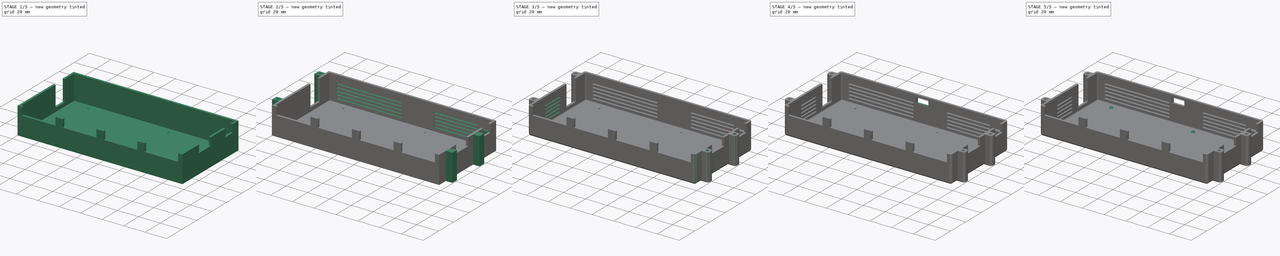
[diagram: build sequence overview — one tinted view per stage of 5, left to right]
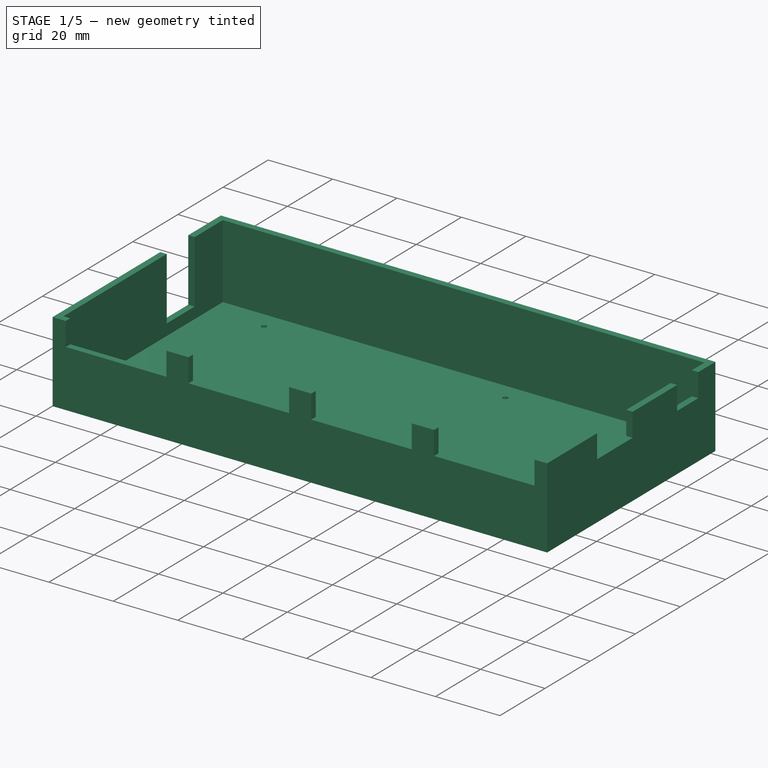
[diagram: stage 1 of 5 — iso view after this stage's code; geometry added in this stage tinted green]
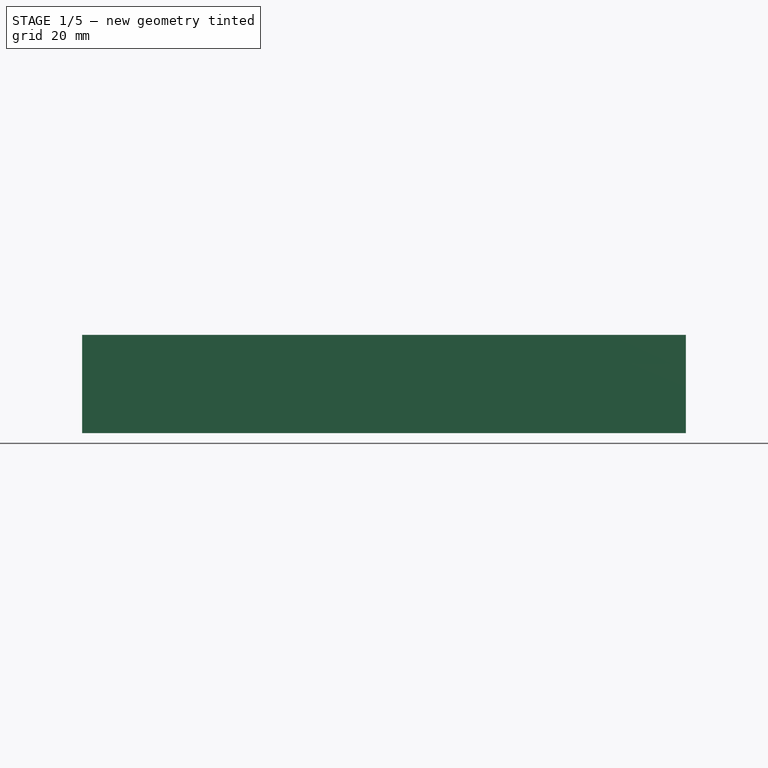
[diagram: stage 1 of 5 — front view after this stage's code; geometry added in this stage tinted green]
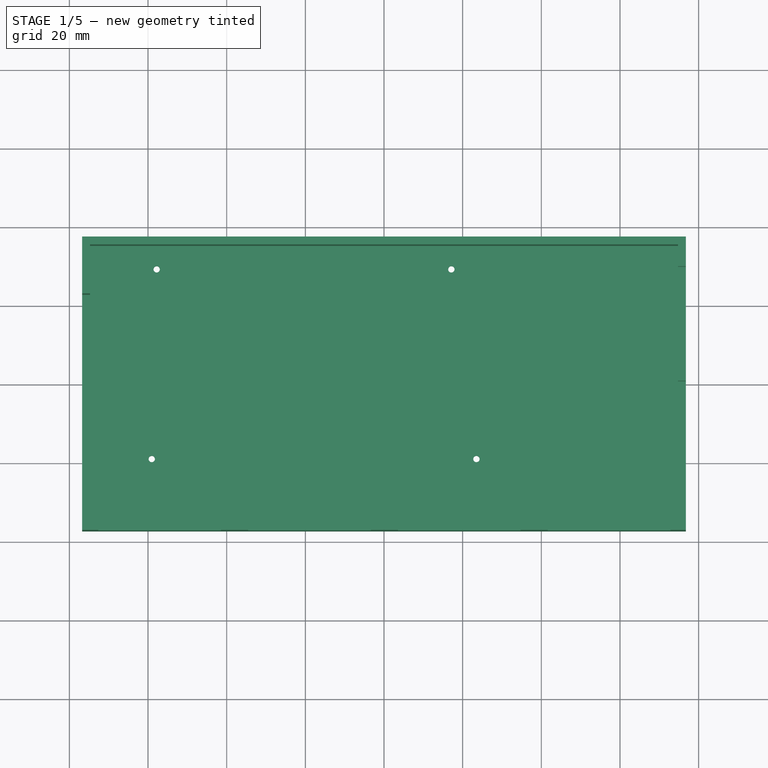
[diagram: stage 1 of 5 — top view after this stage's code; geometry added in this stage tinted green]
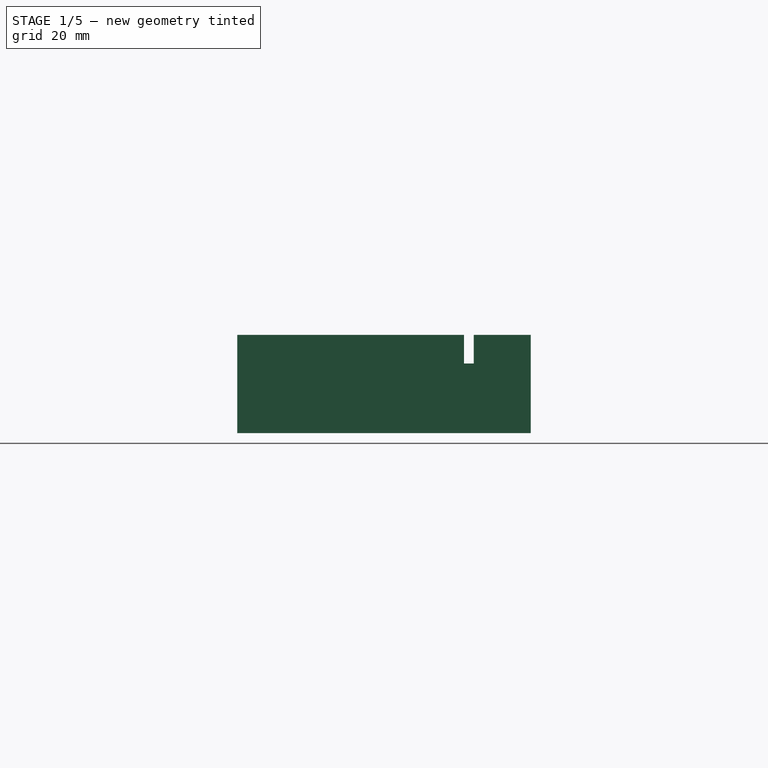
[diagram: stage 1 of 5 — right view after this stage's code; geometry added in this stage tinted green]
FCSTD DOCUMENT  (FreeCAD 0.19R24267 +148 (Git))
Label: case_bottom
License: All rights reserved
LicenseURL: http://en.wikipedia.org/wiki/All_rights_reserved
objects: Sketcher::SketchObject×16, PartDesign::Fillet×8, PartDesign::Pocket×7, PartDesign::Pad×4, PartDesign::Hole×4, PartDesign::AdditiveCone×4, PartDesign::Chamfer×1, PartDesign::Body×1
note: 73 computed .brp shape members not serialized (recipe doc carries the construction recipe); baked Part::Feature solids carry a one-line shape summary decoded from their .brp

FEATURE [Sketcher::SketchObject] Sketch
  FullyConstrained = true
  MapMode = 5
  Support = -> [XY_Plane]
  sketch-geometry (4):
    g0: LineSegment StartX=-76.75 StartY=37.3 StartZ=0 EndX=76.75 EndY=37.3 EndZ=0
    g1: LineSegment StartX=76.75 StartY=37.3 StartZ=0 EndX=76.75 EndY=-37.3 EndZ=0
    g2: LineSegment StartX=76.75 StartY=-37.3 StartZ=0 EndX=-76.75 EndY=-37.3 EndZ=0
    g3: LineSegment StartX=-76.75 StartY=-37.3 StartZ=0 EndX=-76.75 EndY=37.3 EndZ=0
  constraints (11):
    c: Coincident(g0,g1)
    c: Coincident(g1,g2)
    c: Coincident(g2,g3)
    c: Coincident(g3,g0)
    c: Horizontal(g0)
    c: Horizontal(g2)
    c: Vertical(g1)
    c: Vertical(g3)
    c: DistanceX(g2,g2) = 153.5
    c: DistanceY(g1,g1) = 74.6
    c: Symmetric(g1,g0,g-1)
FEATURE [PartDesign::Pad] Pad
  Direction = (1,1,1)
  Length = 25
  Length2 = 100
  Profile = -> Sketch
  Type = 0
FEATURE [Sketcher::SketchObject] Sketch001
  ExternalGeometry = -> [Pad]
  FullyConstrained = true
  MapMode = 5
  Placement = pos=(0,0,25) rot=(0,0,1;0rad)
  Support = -> [Pad]
  sketch-geometry (4):
    g0: LineSegment StartX=-74.75 StartY=35.3 StartZ=0 EndX=74.75 EndY=35.3 EndZ=0
    g1: LineSegment StartX=74.75 StartY=35.3 StartZ=0 EndX=74.75 EndY=-35.3 EndZ=0
    g2: LineSegment StartX=74.75 StartY=-35.3 StartZ=0 EndX=-74.75 EndY=-35.3 EndZ=0
    g3: LineSegment StartX=-74.75 StartY=-35.3 StartZ=0 EndX=-74.75 EndY=35.3 EndZ=0
  constraints (12):
    c: Coincident(g0,g1)
    c: Coincident(g1,g2)
    c: Coincident(g2,g3)
    c: Coincident(g3,g0)
    c: Horizontal(g0)
    c: Horizontal(g2)
    c: Vertical(g1)
    c: Vertical(g3)
    c: DistanceX(g0,g0) = 149.5
    c: DistanceY(g1,g1) = 70.6
    c: DistanceX(g-3,g0) = 2
    c: DistanceY(g0,g-3) = 2
FEATURE [PartDesign::Pocket] Pocket
  BaseFeature = -> Pad
  Length = 23
  Length2 = 100
  Profile = -> Sketch001
  Type = 0
FEATURE [Sketcher::SketchObject] Sketch002
  ExternalGeometry = -> [Pocket]
  FullyConstrained = true
  MapMode = 5
  Placement = pos=(0,-37.3,0) rot=(1,0,0;1.5708rad)
  Support = -> [Pocket]
  sketch-geometry (16):
    g0: LineSegment StartX=-72.65 StartY=25 StartZ=0 EndX=-41.45 EndY=25 EndZ=0
    g1: LineSegment StartX=-41.45 StartY=25 StartZ=0 EndX=-41.45 EndY=17.7 EndZ=0
    g2: LineSegment StartX=-41.45 StartY=17.7 StartZ=0 EndX=-72.65 EndY=17.7 EndZ=0
    g3: LineSegment StartX=-72.65 StartY=17.7 StartZ=0 EndX=-72.65 EndY=25 EndZ=0
    g4: LineSegment StartX=-34.55 StartY=25 StartZ=0 EndX=-3.35 EndY=25 EndZ=0
    g5: LineSegment StartX=-3.35 StartY=25 StartZ=0 EndX=-3.35 EndY=17.7 EndZ=0
    g6: LineSegment StartX=-3.35 StartY=17.7 StartZ=0 EndX=-34.55 EndY=17.7 EndZ=0
    g7: LineSegment StartX=-34.55 StartY=17.7 StartZ=0 EndX=-34.55 EndY=25 EndZ=0
    g8: LineSegment StartX=3.55 StartY=25 StartZ=0 EndX=34.75 EndY=25 EndZ=0
    g9: LineSegment StartX=34.75 StartY=25 StartZ=0 EndX=34.75 EndY=17.7 EndZ=0
    g10: LineSegment StartX=34.75 StartY=17.7 StartZ=0 EndX=3.55 EndY=17.7 EndZ=0
    g11: LineSegment StartX=3.55 StartY=17.7 StartZ=0 EndX=3.55 EndY=25 EndZ=0
    g12: LineSegment StartX=41.65 StartY=25 StartZ=0 EndX=72.85 EndY=25 EndZ=0
    g13: LineSegment StartX=72.85 StartY=25 StartZ=0 EndX=72.85 EndY=17.7 EndZ=0
    g14: LineSegment StartX=72.85 StartY=17.7 StartZ=0 EndX=41.65 EndY=17.7 EndZ=0
    g15: LineSegment StartX=41.65 StartY=17.7 StartZ=0 EndX=41.65 EndY=25 EndZ=0
  constraints (48):
    c: Coincident(g0,g1)
    c: Coincident(g1,g2)
    c: Coincident(g2,g3)
    c: Coincident(g3,g0)
    c: Horizontal(g0)
    c: Horizontal(g2)
    c: Vertical(g1)
    c: Vertical(g3)
    c: PointOnObject(g0,g-4)
    c: DistanceX(g0,g0) = 31.2
    c: DistanceY(g-5,g2) = 17.7
    c: Coincident(g4,g5)
    c: Coincident(g5,g6)
    c: Coincident(g6,g7)
    c: Coincident(g7,g4)
    c: Horizontal(g4)
    c: Horizontal(g6)
    c: Vertical(g5)
    c: Vertical(g7)
    c: Coincident(g8,g9)
    c: Coincident(g9,g10)
    c: Coincident(g10,g11)
    c: Coincident(g11,g8)
    c: Horizontal(g8)
    c: Horizontal(g10)
    c: Vertical(g9)
    c: Vertical(g11)
    c: Coincident(g12,g13)
    c: Coincident(g13,g14)
    c: Coincident(g14,g15)
    c: Coincident(g15,g12)
    c: Horizontal(g12)
    c: Horizontal(g14)
    c: Vertical(g13)
    c: Vertical(g15)
    c: PointOnObject(g4,g-4)
    c: PointOnObject(g8,g-4)
    c: PointOnObject(g12,g-4)
    c: Equal(g7,g1)
    c: Equal(g6,g2)
    c: DistanceX(g0,g4) = 6.9
    c: DistanceX(g4,g8) = 6.9
    c: DistanceX(g8,g12) = 6.9
    c: Equal(g11,g1)
    c: Equal(g10,g2)
    c: Equal(g15,g1)
    c: Equal(g14,g2)
    c: DistanceX(g-4,g0) = 4.1
FEATURE [PartDesign::Pocket] Pocket001
  BaseFeature = -> Pocket
  Length = 0
  Length2 = 100
  Profile = -> Sketch002
  Type = 3
  UpToFace = -> Pocket [Face9]
FEATURE [Sketcher::SketchObject] Sketch003
  ExternalGeometry = -> [Pocket001]
  FullyConstrained = true
  MapMode = 5
  Placement = pos=(76.75,0,0) rot=(0.57735,0.57735,0.57735;2.0944rad)
  Support = -> [Pocket001]
  sketch-geometry (8):
    g0: LineSegment StartX=-15.16 StartY=25 StartZ=0 EndX=0.61 EndY=25 EndZ=0
    g1: LineSegment StartX=0.61 StartY=25 StartZ=0 EndX=0.61 EndY=17.7 EndZ=0
    g2: LineSegment StartX=0.61 StartY=17.7 StartZ=0 EndX=-15.16 EndY=17.7 EndZ=0
    g3: LineSegment StartX=-15.16 StartY=17.7 StartZ=0 EndX=-15.16 EndY=25 EndZ=0
    g4: LineSegment StartX=20.33 StartY=25 StartZ=0 EndX=29.73 EndY=25 EndZ=0
    g5: LineSegment StartX=29.73 StartY=25 StartZ=0 EndX=29.73 EndY=17.7 EndZ=0
    g6: LineSegment StartX=29.73 StartY=17.7 StartZ=0 EndX=20.33 EndY=17.7 EndZ=0
    g7: LineSegment StartX=20.33 StartY=17.7 StartZ=0 EndX=20.33 EndY=25 EndZ=0
  constraints (24):
    c: Coincident(g0,g1)
    c: Coincident(g1,g2)
    c: Coincident(g2,g3)
    c: Coincident(g3,g0)
    c: Horizontal(g0)
    c: Horizontal(g2)
    c: Vertical(g1)
    c: Vertical(g3)
    c: DistanceX(g-5,g0) = 22.14
    c: DistanceX(g0,g0) = 15.77
    c: DistanceY(g-1,g1) = 17.7
    c: Coincident(g4,g5)
    c: Coincident(g5,g6)
    c: Coincident(g6,g7)
    c: Coincident(g7,g4)
    c: Horizontal(g4)
    c: Horizontal(g6)
    c: Vertical(g5)
    c: Vertical(g7)
    c: DistanceY(g-1,g6) = 17.7
    c: DistanceX(g0,g4) = 19.72
    c: DistanceX(g4,g4) = 9.4
    c: PointOnObject(g0,g-5)
    c: PointOnObject(g4,g-5)
FEATURE [PartDesign::Pocket] Pocket002
  BaseFeature = -> Pocket001
  Length = 0
  Length2 = 100
  Profile = -> Sketch003
  Type = 3
  UpToFace = -> Pocket001 [Face11]
FEATURE [Sketcher::SketchObject] Sketch004
  ExternalGeometry = -> [Pocket002]
  FullyConstrained = true
  MapMode = 5
  Placement = pos=(-76.75,0,0) rot=(0.57735,-0.57735,-0.57735;2.0944rad)
  Support = -> [Pocket002]
  sketch-geometry (4):
    g0: LineSegment StartX=-22.83 StartY=25 StartZ=0 EndX=-10.43 EndY=25 EndZ=0
    g1: LineSegment StartX=-10.43 StartY=25 StartZ=0 EndX=-10.43 EndY=5.5 EndZ=0
    g2: LineSegment StartX=-10.43 StartY=5.5 StartZ=0 EndX=-22.83 EndY=5.5 EndZ=0
    g3: LineSegment StartX=-22.83 StartY=5.5 StartZ=0 EndX=-22.83 EndY=25 EndZ=0
  constraints (12):
    c: Coincident(g0,g1)
    c: Coincident(g1,g2)
    c: Coincident(g2,g3)
    c: Coincident(g3,g0)
    c: Horizontal(g0)
    c: Horizontal(g2)
    c: Vertical(g1)
    c: Vertical(g3)
    c: PointOnObject(g0,g-3)
    c: DistanceX(g0,g-3) = 47.73
    c: DistanceX(g0,g0) = 12.4
    c: DistanceY(g3,g3) = 19.5
FEATURE [PartDesign::Pocket] Pocket003
  BaseFeature = -> Pocket002
  Length = 0
  Length2 = 100
  Profile = -> Sketch004
  Type = 3
  UpToFace = -> Pocket002 [Face9]
FEATURE [Sketcher::SketchObject] Sketch005
  FullyConstrained = true
  MapMode = 5
  Placement = pos=(0,0,0) rot=(1,0,0;3.14159rad)
  sketch-geometry (4):
    g0: Circle CenterX=-59.05 CenterY=18.9 CenterZ=0 NormalX=0 NormalY=0 NormalZ=1 AngleXU=0 Radius=2.4
    g1: Circle CenterX=-57.8 CenterY=-29.34 CenterZ=0 NormalX=0 NormalY=0 NormalZ=1 AngleXU=0 Radius=2.4
    g2: Circle CenterX=23.5 CenterY=18.9 CenterZ=0 NormalX=0 NormalY=0 NormalZ=1 AngleXU=0 Radius=2.4
    g3: Circle CenterX=17.13 CenterY=-29.34 CenterZ=0 NormalX=0 NormalY=0 NormalZ=1 AngleXU=0 Radius=2.4
  constraints (12):
    c: Radius(g0) = 2.4
    c: Radius(g1) = 2.4
    c: Radius(g2) = 2.4
    c: Horizontal(g2,g0)
    c: DistanceX(g0,g2) = 82.55
    c: Radius(g3) = 2.4
    c: Horizontal(g3,g1)
    c: DistanceX(g1,g3) = 74.93
    c: DistanceX(g-1,g3) = 17.13
    c: DistanceX(g-1,g2) = 23.5
    c: DistanceY(g-1,g2) = 18.9
    c: DistanceY(g3,g-1) = 29.34
FEATURE [PartDesign::Hole] Hole
  BaseFeature = -> Pocket003
  Depth = 25
  DepthType = 0
  Diameter = 1.6
  DrillForDepth = false
  DrillPoint = 1
  DrillPointAngle = 118
  HoleCutCountersinkAngle = 90
  HoleCutCustomValues = false
  HoleCutDepth = 0
  HoleCutDiameter = 6.1
  HoleCutType = 0
  ModelActualThread = false
  Profile = -> Sketch005
  Tapered = false
  TaperedAngle = 90
  ThreadAngle = 60
  ThreadClass = 0
  ThreadCutOffInner = 0.0433013
  ThreadCutOffOuter = 0.0866025
  ThreadDirection = 0
  ThreadFit = 0
  ThreadPitch = 0.4
  ThreadSize = 6
  ThreadType = 1
  Threaded = true
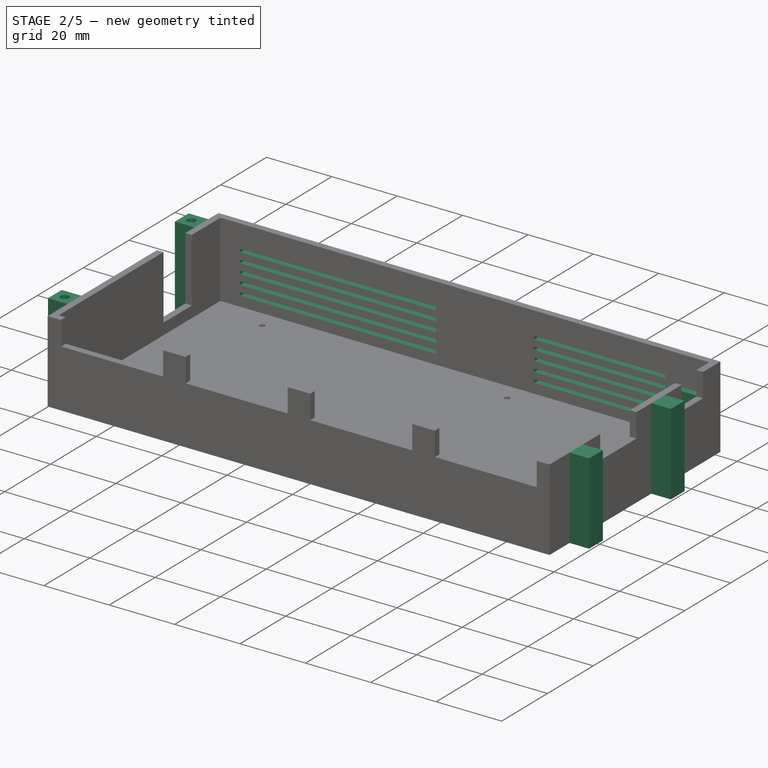
[diagram: stage 2 of 5 — iso view after this stage's code; geometry added in this stage tinted green]
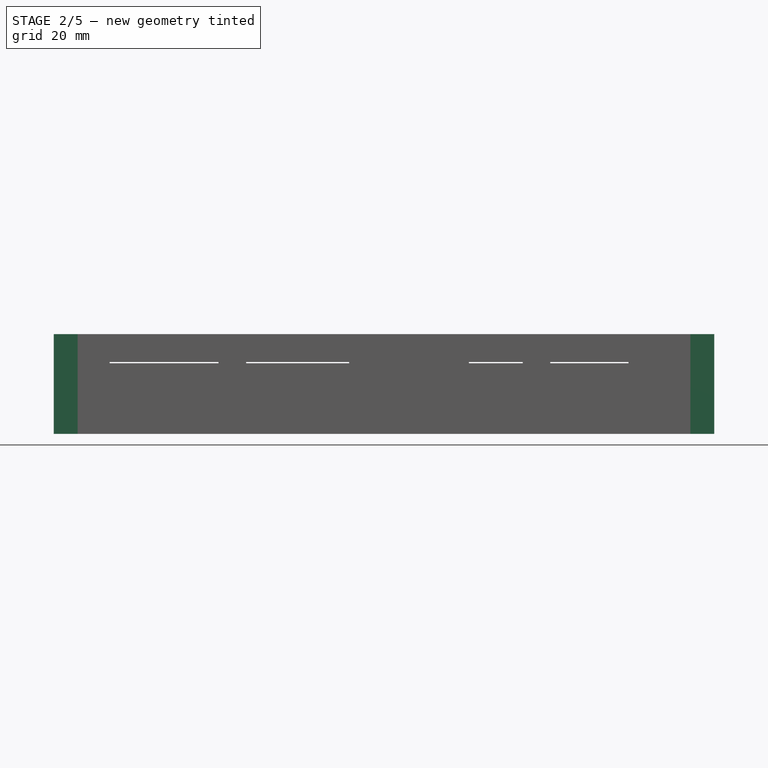
[diagram: stage 2 of 5 — front view after this stage's code; geometry added in this stage tinted green]
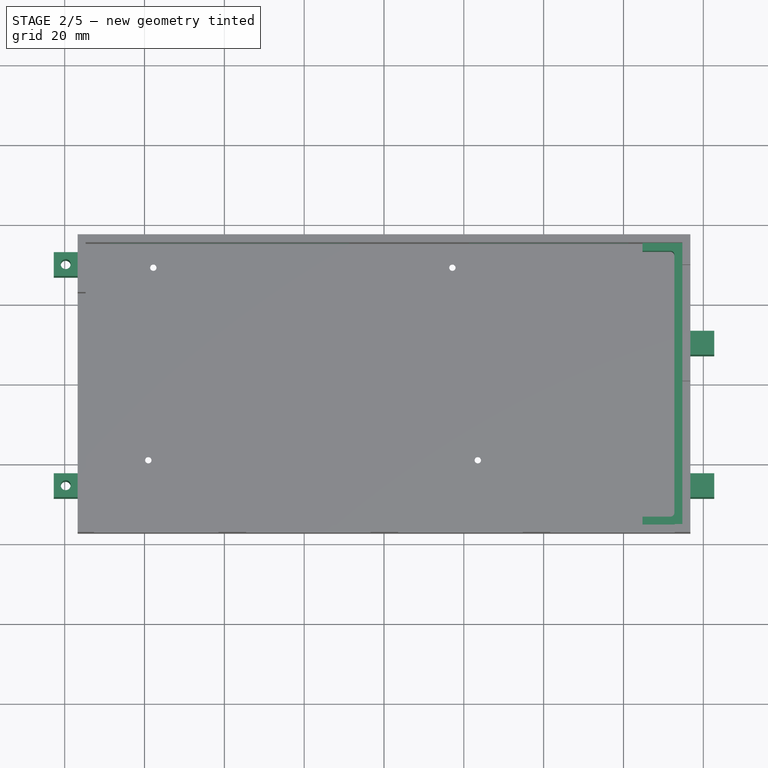
[diagram: stage 2 of 5 — top view after this stage's code; geometry added in this stage tinted green]
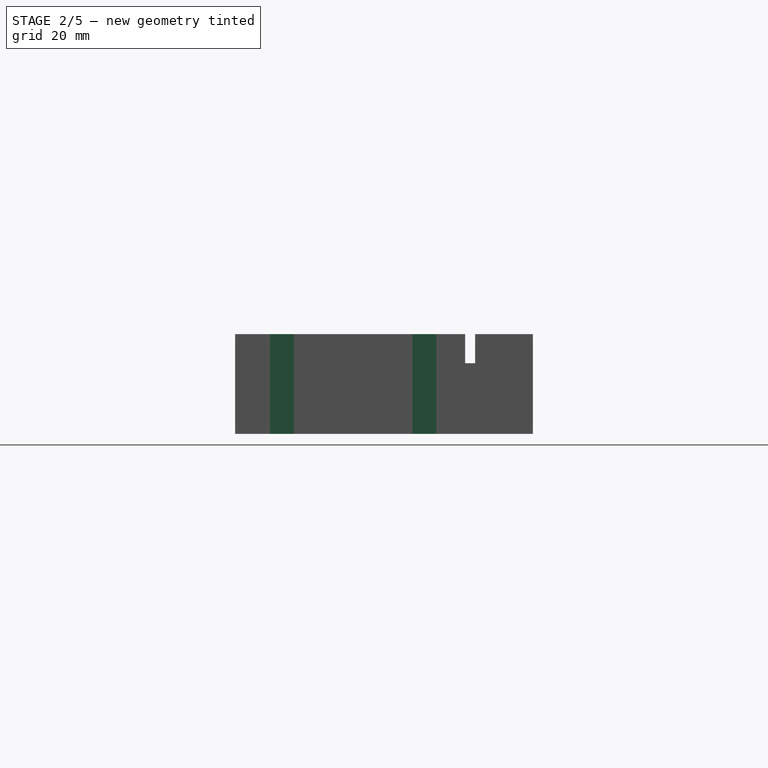
[diagram: stage 2 of 5 — right view after this stage's code; geometry added in this stage tinted green]
FEATURE [Sketcher::SketchObject] Sketch006
  ExternalGeometry = -> [Hole]
  FullyConstrained = true
  MapMode = 5
  Placement = pos=(0,0,2) rot=(0,0,1;0rad)
  Support = -> [Hole]
  sketch-geometry (10):
    g0: LineSegment StartX=64.75 StartY=35.3 StartZ=0 EndX=74.75 EndY=35.3 EndZ=0
    g1: LineSegment StartX=71.75 StartY=33.3 StartZ=0 EndX=64.75 EndY=33.3 EndZ=0
    g2: LineSegment StartX=64.75 StartY=33.3 StartZ=0 EndX=64.75 EndY=35.3 EndZ=0
    g3: LineSegment StartX=64.75 StartY=-33.3 StartZ=0 EndX=71.75 EndY=-33.3 EndZ=0
    g4: LineSegment StartX=74.75 StartY=-35.3 StartZ=0 EndX=64.75 EndY=-35.3 EndZ=0
    g5: LineSegment StartX=64.75 StartY=-35.3 StartZ=0 EndX=64.75 EndY=-33.3 EndZ=0
    g6: LineSegment StartX=72.75 StartY=32.3 StartZ=0 EndX=72.75 EndY=-32.3 EndZ=0
    g7: LineSegment StartX=74.75 StartY=-35.3 StartZ=0 EndX=74.75 EndY=35.3 EndZ=0
    g8: ArcOfCircle CenterX=71.75 CenterY=-32.3 CenterZ=0 NormalX=0 NormalY=0 NormalZ=1 AngleXU=0 Radius=1 StartAngle=4.71239 EndAngle=6.28319
    g9: ArcOfCircle CenterX=71.75 CenterY=32.3 CenterZ=0 NormalX=0 NormalY=0 NormalZ=1 AngleXU=0 Radius=1 StartAngle=-6.8727e-12 EndAngle=1.5708
  constraints (26):
    c: Coincident(g1,g2)
    c: Coincident(g2,g0)
    c: Horizontal(g0)
    c: Horizontal(g1)
    c: Vertical(g2)
    c: Coincident(g0,g-4)
    c: Coincident(g4,g5)
    c: Coincident(g5,g3)
    c: Horizontal(g3)
    c: Horizontal(g4)
    c: Vertical(g5)
    c: Coincident(g4,g-5)
    c: Vertical(g6)
    c: Coincident(g7,g4)
    c: Coincident(g7,g0)
    c: DistanceX(g0,g0) = 10
    c: DistanceY(g2,g2) = 2
    c: Tangent(g6,g8) = 1.5708
    c: Tangent(g3,g8) = -1.5708
    c: Equal(g5,g2)
    c: Tangent(g6,g9) = 1.5708
    c: Tangent(g1,g9) = -1.5708
    c: Radius(g9) = 1
    c: Equal(g9,g8)
    c: Equal(g4,g0)
    c: DistanceX(g6,g0) = 2
FEATURE [PartDesign::Pad] Pad001
  BaseFeature = -> Hole
  Direction = (1,1,1)
  Length = 13.9
  Length2 = 100
  Profile = -> Sketch006
  Type = 0
FEATURE [Sketcher::SketchObject] Sketch009
  FullyConstrained = false
  MapMode = 5
  Placement = pos=(-76.75,0,0) rot=(0.57735,-0.57735,-0.57735;2.0944rad)
  sketch-geometry (8):
    g0: LineSegment StartX=22.57 StartY=25 StartZ=0 EndX=28.57 EndY=25 EndZ=0
    g1: LineSegment StartX=28.57 StartY=25 StartZ=0 EndX=28.57 EndY=0 EndZ=0
    g2: LineSegment StartX=28.57 StartY=0 StartZ=0 EndX=22.57 EndY=0 EndZ=0
    g3: LineSegment StartX=22.57 StartY=0 StartZ=0 EndX=22.57 EndY=25 EndZ=0
    g4: LineSegment StartX=-32.83 StartY=25 StartZ=0 EndX=-26.83 EndY=25 EndZ=0
    g5: LineSegment StartX=-26.83 StartY=25 StartZ=0 EndX=-26.83 EndY=0 EndZ=0
    g6: LineSegment StartX=-26.83 StartY=0 StartZ=0 EndX=-32.83 EndY=0 EndZ=0
    g7: LineSegment StartX=-32.83 StartY=0 StartZ=0 EndX=-32.83 EndY=25 EndZ=0
  constraints (20):
    c: Coincident(g0,g1)
    c: Coincident(g1,g2)
    c: Coincident(g2,g3)
    c: Coincident(g3,g0)
    c: Horizontal(g0)
    c: Horizontal(g2)
    c: Vertical(g1)
    c: Vertical(g3)
    c: PointOnObject(g2,g-1)
    c: DistanceX(g0,g0) = 6
    c: Coincident(g4,g5)
    c: Coincident(g5,g6)
    c: Coincident(g6,g7)
    c: Coincident(g7,g4)
    c: Horizontal(g4)
    c: Horizontal(g6)
    c: Vertical(g5)
    c: Vertical(g7)
    c: PointOnObject(g5,g-1)
    c: DistanceX(g4,g4) = 6
FEATURE [Sketcher::SketchObject] Sketch011
  FullyConstrained = false
  MapMode = 5
  Placement = pos=(0,0,25) rot=(0,0,1;0rad)
  sketch-geometry (2):
    g0: Circle CenterX=-79.75 CenterY=-25.57 CenterZ=0 NormalX=0 NormalY=0 NormalZ=1 AngleXU=0 Radius=1.2
    g1: Circle CenterX=-79.75 CenterY=29.83 CenterZ=0 NormalX=0 NormalY=0 NormalZ=1 AngleXU=0 Radius=1.2
  constraints (2):
    c: Radius(g1) = 1.2
    c: Radius(g0) = 1.2
FEATURE [Sketcher::SketchObject] Sketch012
  FullyConstrained = true
  MapMode = 5
  Placement = pos=(0,37.3,0) rot=(0,0.707107,0.707107;3.14159rad)
  sketch-geometry (40):
    g0: LineSegment StartX=8.75 StartY=6 StartZ=0 EndX=68.75 EndY=6 EndZ=0
    g1: LineSegment StartX=68.75 StartY=6 StartZ=0 EndX=68.75 EndY=5 EndZ=0
    g2: LineSegment StartX=68.75 StartY=5 StartZ=0 EndX=8.75 EndY=5 EndZ=0
    g3: LineSegment StartX=8.75 StartY=5 StartZ=0 EndX=8.75 EndY=6 EndZ=0
    g4: LineSegment StartX=8.75 StartY=9 StartZ=0 EndX=68.75 EndY=9 EndZ=0
    g5: LineSegment StartX=68.75 StartY=9 StartZ=0 EndX=68.75 EndY=8 EndZ=0
    g6: LineSegment StartX=68.75 StartY=8 StartZ=0 EndX=8.75 EndY=8 EndZ=0
    g7: LineSegment StartX=8.75 StartY=8 StartZ=0 EndX=8.75 EndY=9 EndZ=0
    g8: LineSegment StartX=8.75 StartY=12 StartZ=0 EndX=68.75 EndY=12 EndZ=0
    g9: LineSegment StartX=68.75 StartY=12 StartZ=0 EndX=68.75 EndY=11 EndZ=0
    g10: LineSegment StartX=68.75 StartY=11 StartZ=0 EndX=8.75 EndY=11 EndZ=0
    g11: LineSegment StartX=8.75 StartY=11 StartZ=0 EndX=8.75 EndY=12 EndZ=0
    g12: LineSegment StartX=8.75 StartY=15 StartZ=0 EndX=68.75 EndY=15 EndZ=0
    g13: LineSegment StartX=68.75 StartY=15 StartZ=0 EndX=68.75 EndY=14 EndZ=0
    g14: LineSegment StartX=68.75 StartY=14 StartZ=0 EndX=8.75 EndY=14 EndZ=0
    g15: LineSegment StartX=8.75 StartY=14 StartZ=0 EndX=8.75 EndY=15 EndZ=0
    g16: LineSegment StartX=8.75 StartY=18 StartZ=0 EndX=68.75 EndY=18 EndZ=0
    g17: LineSegment StartX=68.75 StartY=18 StartZ=0 EndX=68.75 EndY=17 EndZ=0
    g18: LineSegment StartX=68.75 StartY=17 StartZ=0 EndX=8.75 EndY=17 EndZ=0
    g19: LineSegment StartX=8.75 StartY=17 StartZ=0 EndX=8.75 EndY=18 EndZ=0
    g20: LineSegment StartX=-61.25 StartY=6 StartZ=0 EndX=-21.25 EndY=6 EndZ=0
    g21: LineSegment StartX=-21.25 StartY=6 StartZ=0 EndX=-21.25 EndY=5 EndZ=0
    g22: LineSegment StartX=-21.25 StartY=5 StartZ=0 EndX=-61.25 EndY=5 EndZ=0
    g23: LineSegment StartX=-61.25 StartY=5 StartZ=0 EndX=-61.25 EndY=6 EndZ=0
    g24: LineSegment StartX=-61.25 StartY=9 StartZ=0 EndX=-21.25 EndY=9 EndZ=0
    g25: LineSegment StartX=-21.25 StartY=9 StartZ=0 EndX=-21.25 EndY=8 EndZ=0
    g26: LineSegment StartX=-21.25 StartY=8 StartZ=0 EndX=-61.25 EndY=8 EndZ=0
    g27: LineSegment StartX=-61.25 StartY=8 StartZ=0 EndX=-61.25 EndY=9 EndZ=0
    g28: LineSegment StartX=-61.25 StartY=12 StartZ=0 EndX=-21.25 EndY=12 EndZ=0
    g29: LineSegment StartX=-21.25 StartY=12 StartZ=0 EndX=-21.25 EndY=11 EndZ=0
    g30: LineSegment StartX=-21.25 StartY=11 StartZ=0 EndX=-61.25 EndY=11 EndZ=0
    g31: LineSegment StartX=-61.25 StartY=11 StartZ=0 EndX=-61.25 EndY=12 EndZ=0
    g32: LineSegment StartX=-61.25 StartY=15 StartZ=0 EndX=-21.25 EndY=15 EndZ=0
    g33: LineSegment StartX=-21.25 StartY=15 StartZ=0 EndX=-21.25 EndY=14 EndZ=0
    g34: LineSegment StartX=-21.25 StartY=14 StartZ=0 EndX=-61.25 EndY=14 EndZ=0
    g35: LineSegment StartX=-61.25 StartY=14 StartZ=0 EndX=-61.25 EndY=15 EndZ=0
    g36: LineSegment StartX=-61.25 StartY=18 StartZ=0 EndX=-21.25 EndY=18 EndZ=0
    g37: LineSegment StartX=-21.25 StartY=18 StartZ=0 EndX=-21.25 EndY=17 EndZ=0
    g38: LineSegment StartX=-21.25 StartY=17 StartZ=0 EndX=-61.25 EndY=17 EndZ=0
    g39: LineSegment StartX=-61.25 StartY=17 StartZ=0 EndX=-61.25 EndY=18 EndZ=0
  constraints (120):
    c: Coincident(g0,g1)
    c: Coincident(g1,g2)
    c: Coincident(g2,g3)
    c: Coincident(g3,g0)
    c: Horizontal(g0)
    c: Horizontal(g2)
    c: Vertical(g1)
    c: Vertical(g3)
    c: Coincident(g4,g5)
    c: Coincident(g5,g6)
    c: Coincident(g6,g7)
    c: Coincident(g7,g4)
    c: Horizontal(g4)
    c: Horizontal(g6)
    c: Vertical(g7)
    c: Coincident(g8,g9)
    c: Coincident(g9,g10)
    c: Coincident(g10,g11)
    c: Coincident(g11,g8)
    c: Horizontal(g8)
    c: Horizontal(g10)
    c: Vertical(g11)
    c: Coincident(g12,g13)
    c: Coincident(g13,g14)
    c: Coincident(g14,g15)
    c: Coincident(g15,g12)
    c: Horizontal(g12)
    c: Horizontal(g14)
    c: Vertical(g15)
    c: Coincident(g16,g17)
    c: Coincident(g17,g18)
    c: Coincident(g18,g19)
    c: Coincident(g19,g16)
    c: Horizontal(g16)
    c: Horizontal(g18)
    c: Vertical(g17)
    c: Vertical(g19)
    c: DistanceX(g2,g2) = 60
    c: DistanceY(g1,g1) = 1
    c: Vertical(g5,g9)
    c: Vertical(g9,g13)
    c: Vertical(g13,g17)
    c: Vertical(g1,g5)
    c: Vertical(g4,g0)
    c: Vertical(g0,g8)
    c: Vertical(g8,g12)
    c: Equal(g5,g1)
    c: Equal(g1,g9)
    c: Equal(g9,g13)
    c: Equal(g13,g17)
    c: DistanceY(g0,g5) = 2
    c: DistanceY(g4,g9) = 2
    c: DistanceY(g8,g13) = 2
    c: DistanceY(g12,g17) = 2
    c: Equal(g2,g6)
    c: Equal(g6,g10)
    c: Equal(g10,g14)
    c: Equal(g14,g18)
    c: Coincident(g20,g21)
    c: Coincident(g21,g22)
    c: Coincident(g22,g23)
    c: Coincident(g23,g20)
    c: Horizontal(g20)
    c: Horizontal(g22)
    c: Vertical(g21)
    c: Vertical(g23)
    c: Coincident(g24,g25)
    c: Coincident(g25,g26)
    c: Coincident(g26,g27)
    c: Coincident(g27,g24)
    c: Horizontal(g24)
    c: Horizontal(g26)
    c: Vertical(g25)
    c: Vertical(g27)
    c: Coincident(g28,g29)
    c: Coincident(g29,g30)
    c: Coincident(g30,g31)
    c: Coincident(g31,g28)
    c: Horizontal(g28)
    c: Horizontal(g30)
    c: Vertical(g29)
    c: Vertical(g31)
    c: Coincident(g32,g33)
    c: Coincident(g33,g34)
    c: Coincident(g34,g35)
    c: Coincident(g35,g32)
    c: Horizontal(g32)
    c: Horizontal(g34)
    c: Vertical(g33)
    c: Vertical(g35)
    c: Coincident(g36,g37)
    c: Coincident(g37,g38)
    c: Coincident(g38,g39)
    c: Coincident(g39,g36)
    c: Horizontal(g36)
    c: Horizontal(g38)
    c: Vertical(g37)
    c: Vertical(g39)
    c: Horizontal(g21,g2)
    c: DistanceX(g22,g22) = 40
    c: Equal(g22,g26)
    c: Equal(g26,g30)
    c: Equal(g30,g34)
    c: Equal(g34,g38)
    c: DistanceX(g21,g2) = 30
    c: Vertical(g21,g25)
    c: Vertical(g21,g29)
    c: Vertical(g29,g33)
    c: Vertical(g33,g37)
    c: DistanceY(g21,g21) = 1
    c: Equal(g21,g25)
    c: Equal(g25,g29)
    c: Equal(g29,g33)
    c: Equal(g33,g37)
    c: DistanceY(g20,g25) = 2
    c: DistanceY(g24,g29) = 2
    c: DistanceY(g28,g33) = 2
    c: DistanceY(g32,g37) = 2
    c: DistanceX(g-1,g1) = 68.75
    c: DistanceY(g-1,g1) = 5
FEATURE [PartDesign::Pad] Pad002
  BaseFeature = -> Pad001
  Direction = (1,1,1)
  Length = 6
  Length2 = 100
  Profile = -> Sketch009
  Type = 0
FEATURE [PartDesign::Hole] Hole001
  BaseFeature = -> Pad002
  Depth = 25
  DepthType = 0
  Diameter = 2.5
  DrillForDepth = false
  DrillPoint = 1
  DrillPointAngle = 118
  HoleCutCountersinkAngle = 90
  HoleCutCustomValues = false
  HoleCutDepth = 0
  HoleCutDiameter = 6.1
  HoleCutType = 0
  ModelActualThread = false
  Profile = -> Sketch011
  Tapered = false
  TaperedAngle = 90
  ThreadAngle = 60
  ThreadClass = 0
  ThreadCutOffInner = 0.0541266
  ThreadCutOffOuter = 0.108253
  ThreadDirection = 0
  ThreadFit = 0
  ThreadPitch = 0.5
  ThreadSize = 9
  ThreadType = 1
  Threaded = true
FEATURE [PartDesign::Pocket] Pocket004
  BaseFeature = -> Hole001
  Length = 0
  Length2 = 100
  Profile = -> Sketch012
  Type = 3
  UpToFace = -> Hole001 [Face18]
FEATURE [Sketcher::SketchObject] Sketch014
  ExternalGeometry = -> [Pad002]
  FullyConstrained = true
  MapMode = 5
  Placement = pos=(76.75,0,0) rot=(0.57735,0.57735,0.57735;2.0944rad)
  Support = -> [Pad002]
  sketch-geometry (8):
    g0: LineSegment StartX=-28.57 StartY=25 StartZ=0 EndX=-22.57 EndY=25 EndZ=0
    g1: LineSegment StartX=-22.57 StartY=25 StartZ=0 EndX=-22.57 EndY=0 EndZ=0
    g2: LineSegment StartX=-22.57 StartY=0 StartZ=0 EndX=-28.57 EndY=0 EndZ=0
    g3: LineSegment StartX=-28.57 StartY=0 StartZ=0 EndX=-28.57 EndY=25 EndZ=0
    g4: LineSegment StartX=7.13 StartY=25 StartZ=0 EndX=13.13 EndY=25 EndZ=0
    g5: LineSegment StartX=13.13 StartY=25 StartZ=0 EndX=13.13 EndY=0 EndZ=0
    g6: LineSegment StartX=13.13 StartY=0 StartZ=0 EndX=7.13 EndY=0 EndZ=0
    g7: LineSegment StartX=7.13 StartY=0 StartZ=0 EndX=7.13 EndY=25 EndZ=0
  constraints (24):
    c: Coincident(g0,g1)
    c: Coincident(g1,g2)
    c: Coincident(g2,g3)
    c: Coincident(g3,g0)
    c: Horizontal(g0)
    c: Horizontal(g2)
    c: Vertical(g1)
    c: Vertical(g3)
    c: Coincident(g4,g5)
    c: Coincident(g5,g6)
    c: Coincident(g6,g7)
    c: Coincident(g7,g4)
    c: Horizontal(g4)
    c: Vertical(g5)
    c: Vertical(g7)
    c: PointOnObject(g5,g-1)
    c: PointOnObject(g2,g-1)
    c: PointOnObject(g6,g-1)
    c: Horizontal(g0,g-3)
    c: Horizontal(g4,g0)
    c: DistanceX(g0,g0) = 6
    c: DistanceX(g-3,g0) = 8.73
    c: DistanceX(g0,g4) = 29.7
    c: DistanceX(g4,g4) = 6
FEATURE [PartDesign::Pad] Pad003
  BaseFeature = -> Pocket004
  Direction = (1,1,1)
  Length = 6
  Length2 = 100
  Profile = -> Sketch014
  Type = 0
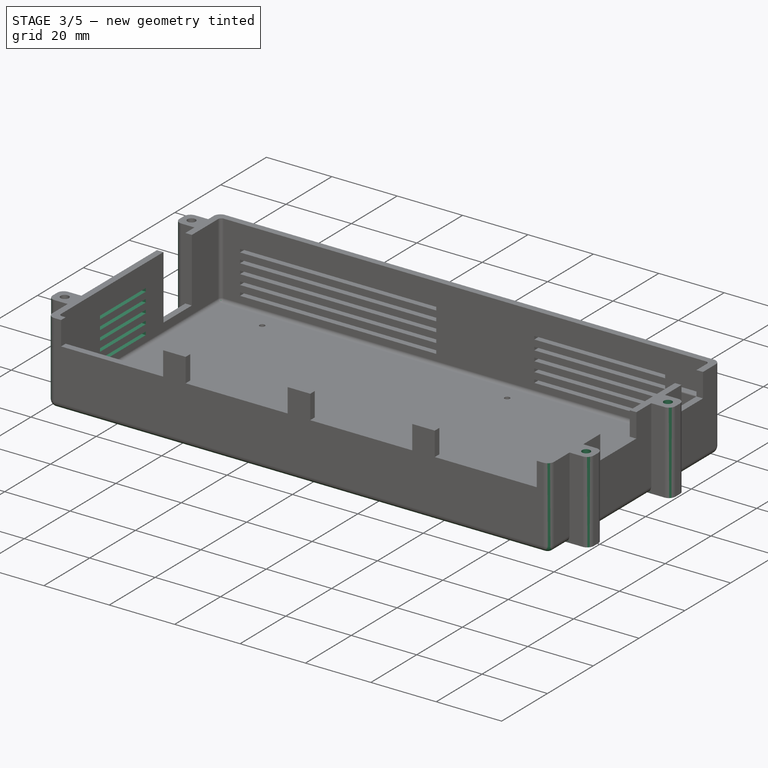
[diagram: stage 3 of 5 — iso view after this stage's code; geometry added in this stage tinted green]
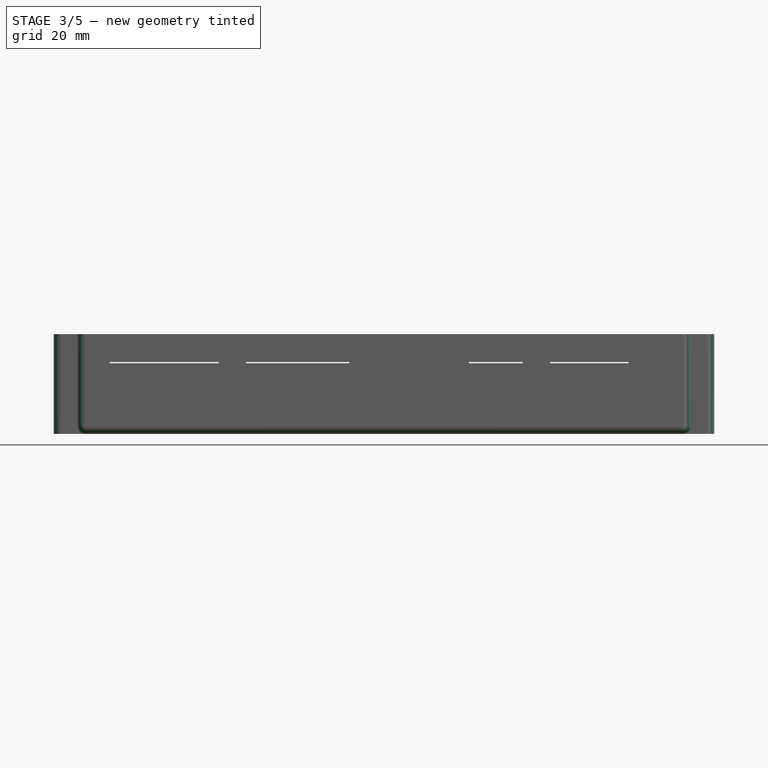
[diagram: stage 3 of 5 — front view after this stage's code; geometry added in this stage tinted green]
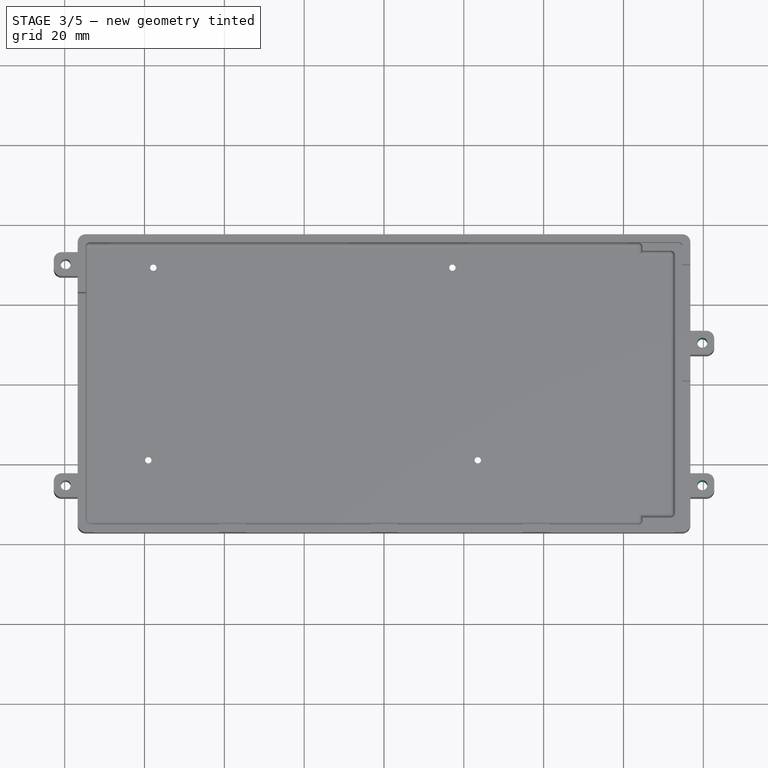
[diagram: stage 3 of 5 — top view after this stage's code; geometry added in this stage tinted green]
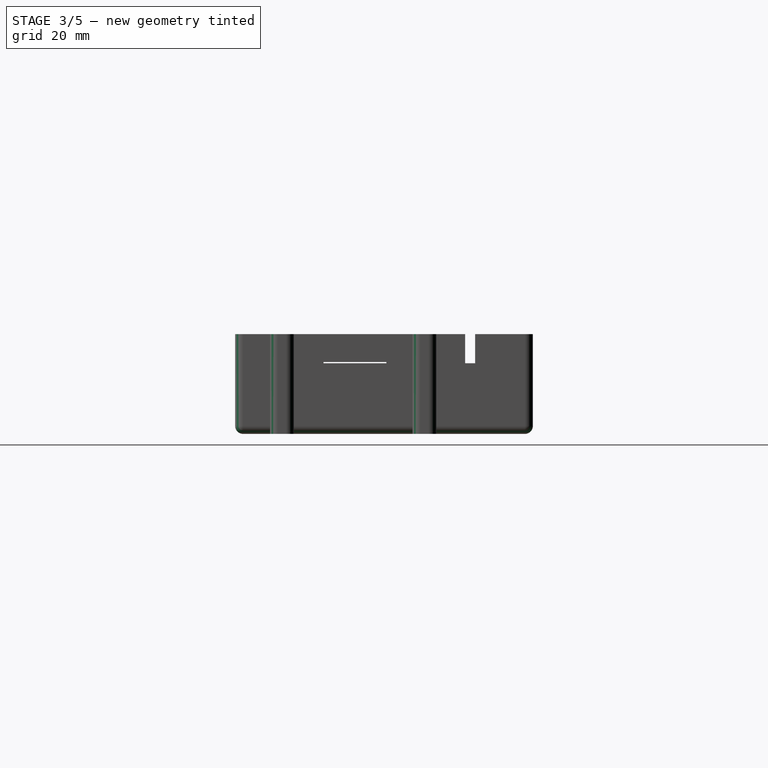
[diagram: stage 3 of 5 — right view after this stage's code; geometry added in this stage tinted green]
FEATURE [Sketcher::SketchObject] Sketch015
  ExternalGeometry = -> [Pad003]
  FullyConstrained = true
  MapMode = 5
  Placement = pos=(0,0,25) rot=(0,0,1;0rad)
  Support = -> [Pad003]
  sketch-geometry (2):
    g0: Circle CenterX=79.75 CenterY=-25.57 CenterZ=0 NormalX=0 NormalY=0 NormalZ=1 AngleXU=0 Radius=1.2
    g1: Circle CenterX=79.75 CenterY=10.13 CenterZ=0 NormalX=0 NormalY=0 NormalZ=1 AngleXU=0 Radius=1.2
  constraints (6):
    c: DistanceX(g1,g-3) = 3
    c: DistanceY(g-3,g1) = -3
    c: Radius(g1) = 1.2
    c: Radius(g0) = 1.2
    c: DistanceX(g0,g-4) = 3
    c: DistanceY(g0,g-4) = 3
FEATURE [PartDesign::Hole] Hole002
  BaseFeature = -> Pad003
  Depth = 25
  DepthType = 0
  Diameter = 2.5
  DrillForDepth = false
  DrillPoint = 1
  DrillPointAngle = 118
  HoleCutCountersinkAngle = 90
  HoleCutCustomValues = false
  HoleCutDepth = 0
  HoleCutDiameter = 6.1
  HoleCutType = 0
  ModelActualThread = false
  Profile = -> Sketch015
  Tapered = false
  TaperedAngle = 90
  ThreadAngle = 60
  ThreadClass = 0
  ThreadCutOffInner = 0.0541266
  ThreadCutOffOuter = 0.108253
  ThreadDirection = 0
  ThreadFit = 0
  ThreadPitch = 0.5
  ThreadSize = 9
  ThreadType = 1
  Threaded = true
FEATURE [Sketcher::SketchObject] Sketch016
  ExternalGeometry = -> [Hole002]
  FullyConstrained = true
  MapMode = 5
  Placement = pos=(-76.75,0,0) rot=(0.57735,-0.57735,-0.57735;2.0944rad)
  Support = -> [Hole002]
  sketch-geometry (20):
    g0: LineSegment StartX=-2.7 StartY=15 StartZ=0 EndX=17.3 EndY=15 EndZ=0
    g1: LineSegment StartX=17.3 StartY=15 StartZ=0 EndX=17.3 EndY=14 EndZ=0
    g2: LineSegment StartX=17.3 StartY=14 StartZ=0 EndX=-2.7 EndY=14 EndZ=0
    g3: LineSegment StartX=-2.7 StartY=14 StartZ=0 EndX=-2.7 EndY=15 EndZ=0
    g4: LineSegment StartX=-2.7 StartY=9 StartZ=0 EndX=17.3 EndY=9 EndZ=0
    g5: LineSegment StartX=17.3 StartY=9 StartZ=0 EndX=17.3 EndY=8 EndZ=0
    g6: LineSegment StartX=17.3 StartY=8 StartZ=0 EndX=-2.7 EndY=8 EndZ=0
    g7: LineSegment StartX=-2.7 StartY=8 StartZ=0 EndX=-2.7 EndY=9 EndZ=0
    g8: LineSegment StartX=-2.7 StartY=6 StartZ=0 EndX=17.3 EndY=6 EndZ=0
    g9: LineSegment StartX=17.3 StartY=6 StartZ=0 EndX=17.3 EndY=5 EndZ=0
    g10: LineSegment StartX=17.3 StartY=5 StartZ=0 EndX=-2.7 EndY=5 EndZ=0
    g11: LineSegment StartX=-2.7 StartY=5 StartZ=0 EndX=-2.7 EndY=6 EndZ=0
    g12: LineSegment StartX=-2.7 StartY=12 StartZ=0 EndX=17.3 EndY=12 EndZ=0
    g13: LineSegment StartX=17.3 StartY=12 StartZ=0 EndX=17.3 EndY=11 EndZ=0
    g14: LineSegment StartX=17.3 StartY=11 StartZ=0 EndX=-2.7 EndY=11 EndZ=0
    g15: LineSegment StartX=-2.7 StartY=11 StartZ=0 EndX=-2.7 EndY=12 EndZ=0
    g16: LineSegment StartX=-2.7 StartY=18 StartZ=0 EndX=17.3 EndY=18 EndZ=0
    g17: LineSegment StartX=17.3 StartY=18 StartZ=0 EndX=17.3 EndY=17 EndZ=0
    g18: LineSegment StartX=17.3 StartY=17 StartZ=0 EndX=-2.7 EndY=17 EndZ=0
    g19: LineSegment StartX=-2.7 StartY=17 StartZ=0 EndX=-2.7 EndY=18 EndZ=0
  constraints (60):
    c: Coincident(g0,g1)
    c: Coincident(g1,g2)
    c: Coincident(g2,g3)
    c: Coincident(g3,g0)
    c: Horizontal(g0)
    c: Horizontal(g2)
    c: Vertical(g1)
    c: Vertical(g3)
    c: Coincident(g4,g5)
    c: Coincident(g5,g6)
    c: Coincident(g6,g7)
    c: Coincident(g7,g4)
    c: Horizontal(g4)
    c: Horizontal(g6)
    c: Vertical(g5)
    c: Vertical(g7)
    c: Coincident(g8,g9)
    c: Coincident(g9,g10)
    c: Coincident(g10,g11)
    c: Coincident(g11,g8)
    c: Horizontal(g8)
    c: Horizontal(g10)
    c: Vertical(g9)
    c: Vertical(g11)
    c: Coincident(g12,g13)
    c: Coincident(g13,g14)
    c: Coincident(g14,g15)
    c: Coincident(g15,g12)
    c: Horizontal(g12)
    c: Horizontal(g14)
    c: Vertical(g13)
    c: Vertical(g15)
    c: Coincident(g16,g17)
    c: Coincident(g17,g18)
    c: Coincident(g18,g19)
    c: Coincident(g19,g16)
    c: Horizontal(g16)
    c: Horizontal(g18)
    c: Vertical(g17)
    c: Vertical(g19)
    c: DistanceX(g9,g-3) = 20
    c: DistanceX(g10,g10) = 20
    c: DistanceY(g-3,g9) = 5
    c: DistanceY(g9,g9) = 1
    c: Vertical(g9,g5)
    c: Vertical(g5,g13)
    c: Vertical(g13,g1)
    c: Vertical(g1,g17)
    c: Equal(g10,g6)
    c: Equal(g6,g14)
    c: Equal(g14,g2)
    c: Equal(g2,g18)
    c: DistanceY(g8,g5) = 2
    c: DistanceY(g4,g13) = 2
    c: DistanceY(g12,g1) = 2
    c: DistanceY(g0,g17) = 2
    c: Equal(g9,g5)
    c: Equal(g5,g13)
    c: Equal(g13,g1)
    c: Equal(g1,g17)
FEATURE [PartDesign::Pocket] Pocket005
  BaseFeature = -> Hole002
  Length = 0
  Length2 = 100
  Profile = -> Sketch016
  Type = 3
  UpToFace = -> Hole002 [Face61]
FEATURE [PartDesign::Fillet] Fillet
  Base = -> Pocket005 [Edge160,Edge57,Edge48,Edge50,Edge45,Edge2,Edge4,Edge52,Edge54,Edge209,Edge56,Edge1]
  BaseFeature = -> Pocket005
  Radius = 2
  SupportTransform = false
FEATURE [PartDesign::Fillet] Fillet001
  Base = -> Fillet [Edge342,Edge314,Edge350,Edge354,Edge369,Edge376,Edge382,Edge253]
  BaseFeature = -> Fillet
  Radius = 2
  SupportTransform = false
FEATURE [PartDesign::Fillet] Fillet002
  Base = -> Fillet001 [Edge81,Edge80,Edge127,Edge302,Edge125,Edge77,Edge79,Edge329,Edge326,Edge332,Edge301,Edge82]
  BaseFeature = -> Fillet001
  Radius = 1
  SupportTransform = false
FEATURE [PartDesign::Fillet] Fillet003
  Base = -> Fillet002 [Edge193,Edge195,Edge197]
  BaseFeature = -> Fillet002
  Radius = 0.4
  SupportTransform = false
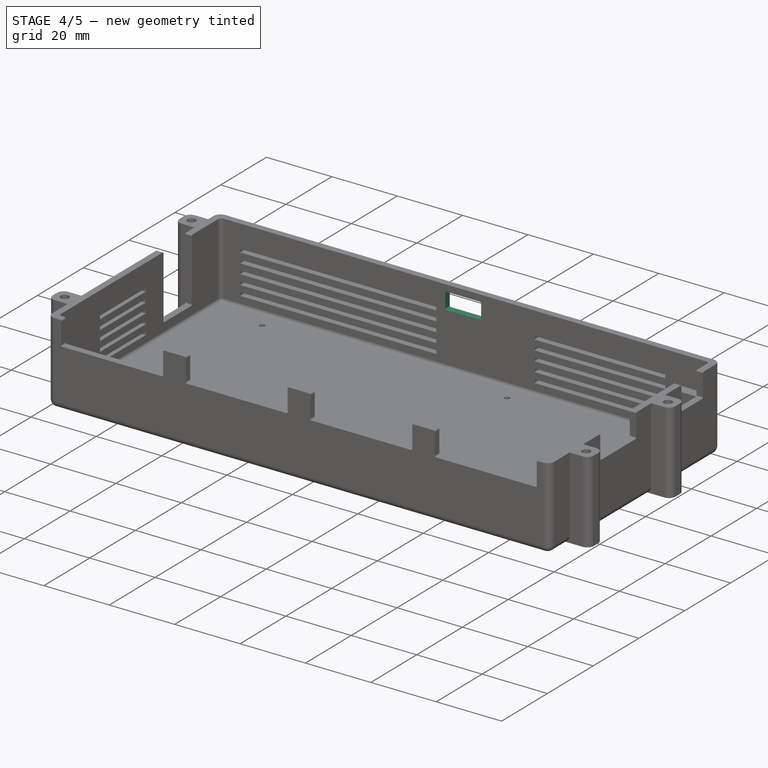
[diagram: stage 4 of 5 — iso view after this stage's code; geometry added in this stage tinted green]
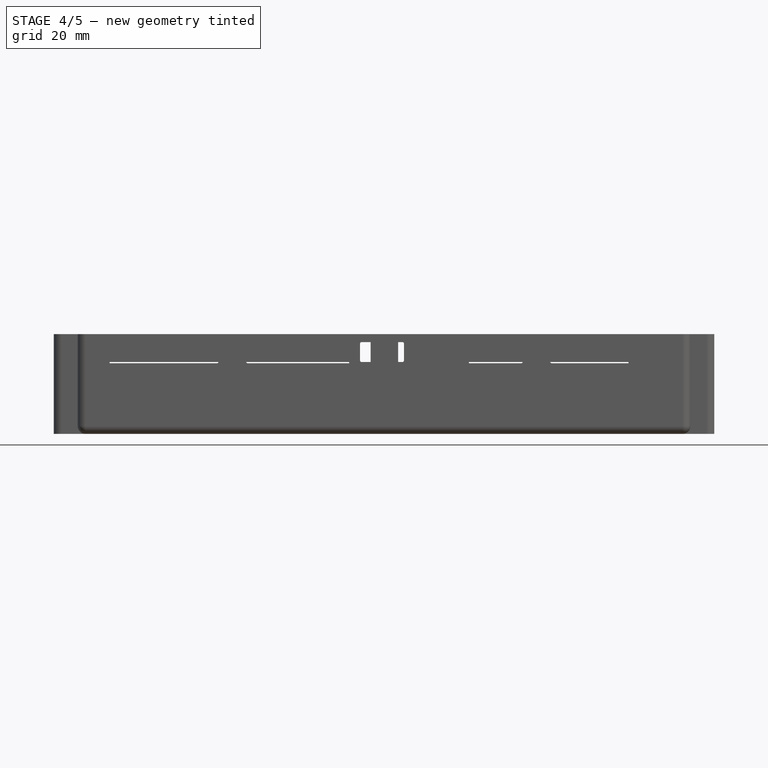
[diagram: stage 4 of 5 — front view after this stage's code; geometry added in this stage tinted green]
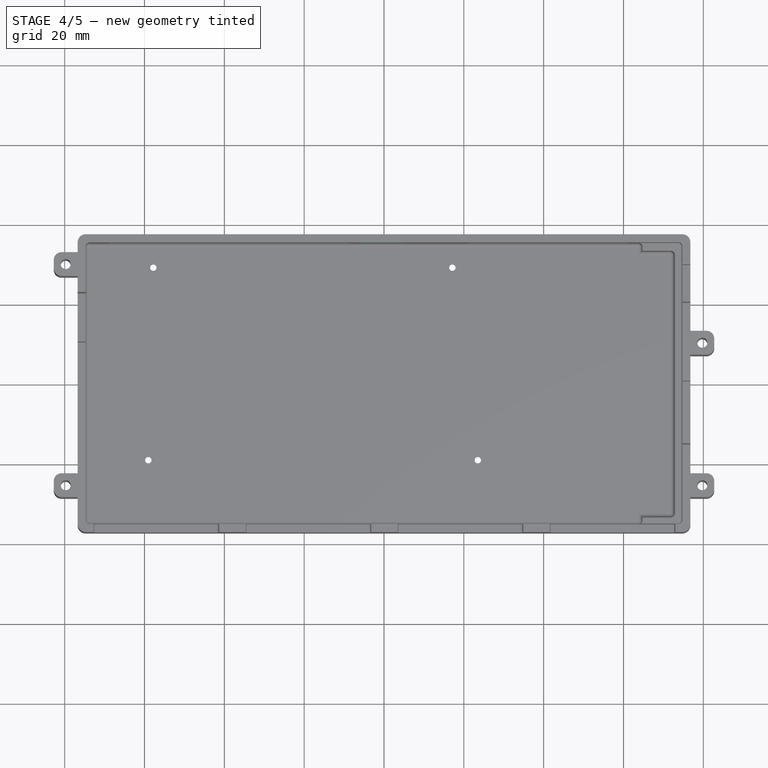
[diagram: stage 4 of 5 — top view after this stage's code; geometry added in this stage tinted green]
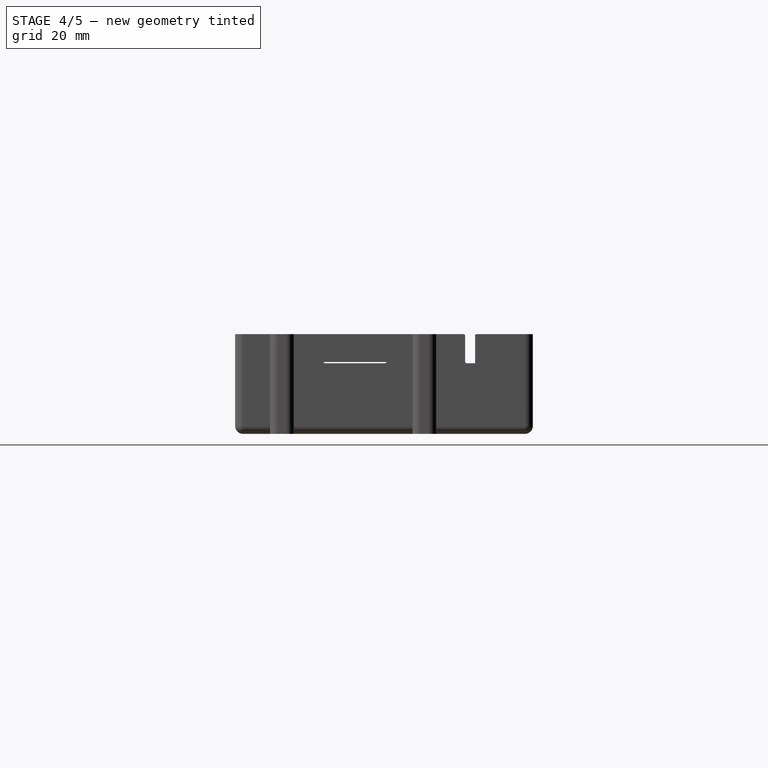
[diagram: stage 4 of 5 — right view after this stage's code; geometry added in this stage tinted green]
FEATURE [PartDesign::Fillet] Fillet004
  Base = -> Fillet003 [Edge7,Edge11,Edge15]
  BaseFeature = -> Fillet003
  Radius = 0.5
  SupportTransform = false
FEATURE [PartDesign::Fillet] Fillet005
  Base = -> Fillet004 [Edge356,Edge426,Edge312,Edge318,Edge296,Edge284,Edge274,Edge259,Edge268,Edge270,Edge286,Edge306,Edge322,Edge308,Edge298,Edge157,Edge300,Edge316,Edge319,Edge313,Edge310,Edge290,Edge288,Edge260,Edge262,Edge278,Edge272,Edge151]
  BaseFeature = -> Fillet004
  Radius = 0.4
  SupportTransform = false
FEATURE [PartDesign::Chamfer] Chamfer
  Angle = 45
  Base = -> Fillet005 [Edge570,Edge569,Edge567,Edge568]
  BaseFeature = -> Fillet005
  ChamferType = 0
  FlipDirection = false
  Size = 0.5
  Size2 = 1
  SupportTransform = false
FEATURE [Sketcher::SketchObject] Sketch017
  FullyConstrained = true
  MapMode = 5
  Placement = pos=(0,37.3,0) rot=(0,0.707107,0.707107;3.14159rad)
  Support = -> [Chamfer]
  sketch-geometry (4):
    g0: LineSegment StartX=-5 StartY=23 StartZ=0 EndX=6 EndY=23 EndZ=0
    g1: LineSegment StartX=6 StartY=23 StartZ=0 EndX=6 EndY=18 EndZ=0
    g2: LineSegment StartX=6 StartY=18 StartZ=0 EndX=-5 EndY=18 EndZ=0
    g3: LineSegment StartX=-5 StartY=18 StartZ=0 EndX=-5 EndY=23 EndZ=0
  constraints (12):
    c: Coincident(g0,g1)
    c: Coincident(g1,g2)
    c: Coincident(g2,g3)
    c: Coincident(g3,g0)
    c: Horizontal(g0)
    c: Horizontal(g2)
    c: Vertical(g1)
    c: Vertical(g3)
    c: DistanceX(g0,g0) = 11
    c: DistanceY(g1,g1) = 5
    c: DistanceY(g-1,g1) = 18
    c: DistanceX(g1,g-1) = -6
FEATURE [PartDesign::Pocket] Pocket006
  BaseFeature = -> Chamfer
  Length = 2
  Length2 = 100
  Profile = -> Sketch017
  Type = 0
FEATURE [PartDesign::Fillet] Fillet006
  Base = -> Pocket006 [Edge448,Edge449,Edge451,Edge453]
  BaseFeature = -> Pocket006
  Radius = 0.4
  SupportTransform = false
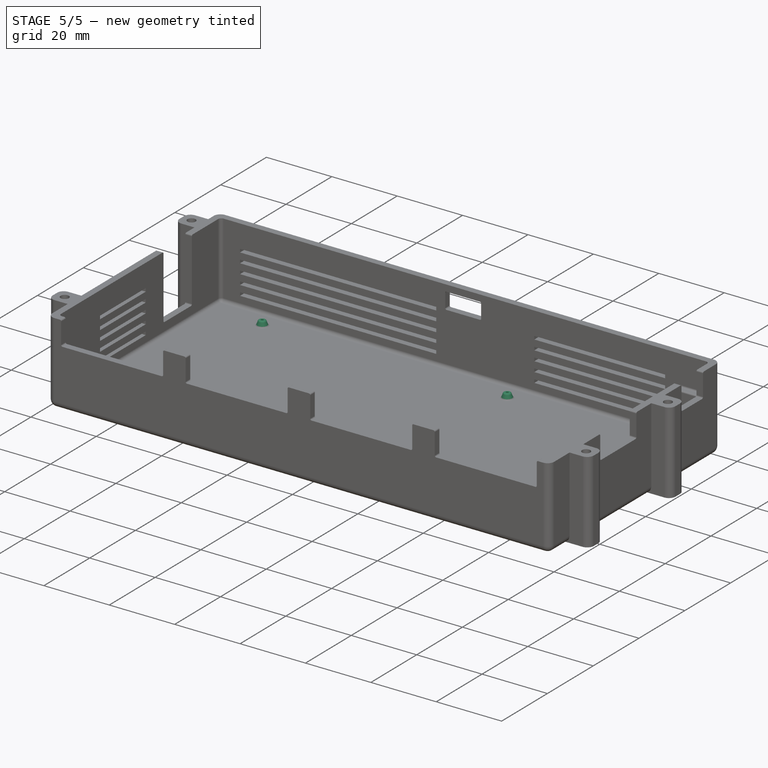
[diagram: stage 5 of 5 — iso view after this stage's code; geometry added in this stage tinted green]
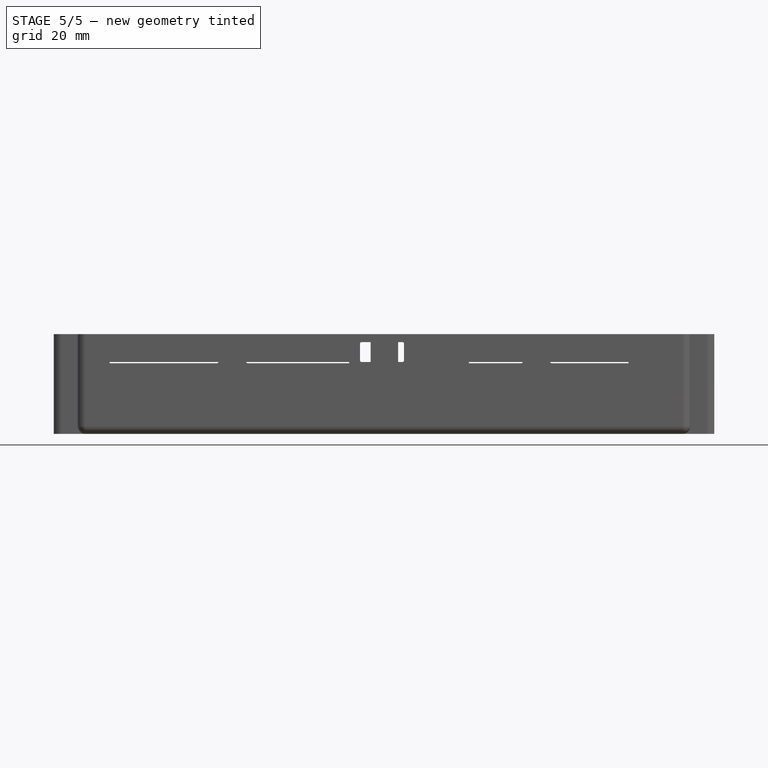
[diagram: stage 5 of 5 — front view after this stage's code; geometry added in this stage tinted green]
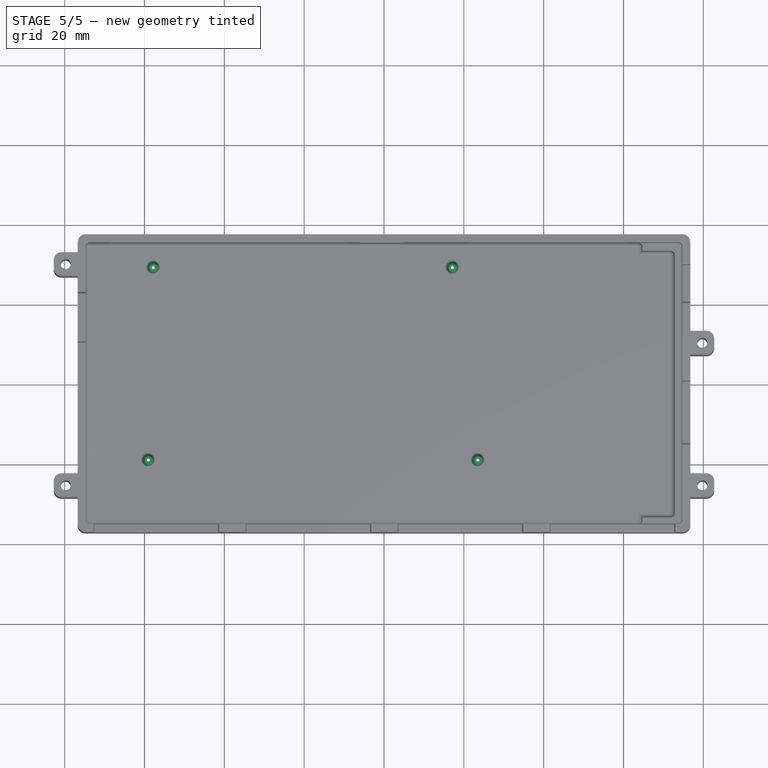
[diagram: stage 5 of 5 — top view after this stage's code; geometry added in this stage tinted green]
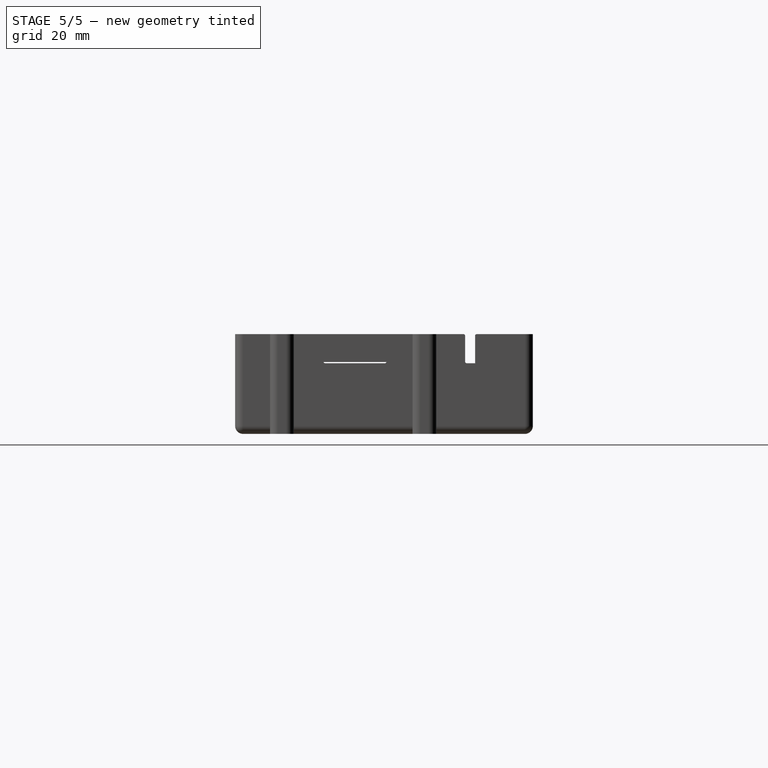
[diagram: stage 5 of 5 — right view after this stage's code; geometry added in this stage tinted green]
FEATURE [Sketcher::SketchObject] Sketch018
  ExternalGeometry = -> [Fillet006]
  FullyConstrained = true
  MapMode = 5
  Placement = pos=(0,0,2) rot=(0,0,1;0rad)
  Support = -> [Fillet006]
  sketch-geometry (4):
    g0: Circle CenterX=-59.05 CenterY=-18.9 CenterZ=0 NormalX=0 NormalY=0 NormalZ=1 AngleXU=0 Radius=1.8
    g1: Circle CenterX=-57.8 CenterY=29.34 CenterZ=0 NormalX=0 NormalY=0 NormalZ=1 AngleXU=0 Radius=1.8
    g2: Circle CenterX=17.13 CenterY=29.34 CenterZ=0 NormalX=0 NormalY=0 NormalZ=1 AngleXU=0 Radius=1.8
    g3: Circle CenterX=23.5 CenterY=-18.9 CenterZ=0 NormalX=0 NormalY=0 NormalZ=1 AngleXU=0 Radius=1.8
  constraints (8):
    c: Coincident(g0,g-3)
    c: Coincident(g1,g-4)
    c: Coincident(g2,g-5)
    c: Coincident(g3,g-6)
    c: Radius(g1) = 1.8
    c: Radius(g0) = 1.8
    c: Radius(g2) = 1.8
    c: Radius(g3) = 1.8
FEATURE [PartDesign::AdditiveCone] Cone
  Angle = 360
  AttacherType = Attacher::AttachEngine3D
  BaseFeature = -> Fillet006
  Height = 1.6
  MapMode = 11
  Placement = pos=(-57.8,29.34,2) rot=(0,0,1;1.5708rad)
  Radius1 = 1.6
  Radius2 = 1
  Support = -> [Sketch018]
FEATURE [PartDesign::AdditiveCone] Cone001
  Angle = 360
  AttacherType = Attacher::AttachEngine3D
  BaseFeature = -> Cone
  Height = 1.6
  MapMode = 11
  Placement = pos=(-59.05,-18.9,2) rot=(0,0,1;1.5708rad)
  Radius1 = 1.6
  Radius2 = 1
  Support = -> [Sketch018]
FEATURE [PartDesign::AdditiveCone] Cone002
  Angle = 360
  AttacherType = Attacher::AttachEngine3D
  BaseFeature = -> Cone001
  Height = 1.6
  MapMode = 11
  Placement = pos=(17.13,29.34,2) rot=(0,0,1;1.5708rad)
  Radius1 = 1.6
  Radius2 = 1
  Support = -> [Sketch018]
FEATURE [PartDesign::AdditiveCone] Cone003
  Angle = 360
  AttacherType = Attacher::AttachEngine3D
  BaseFeature = -> Cone002
  Height = 1.6
  MapMode = 11
  Placement = pos=(23.5,-18.9,2) rot=(0,0,1;1.5708rad)
  Radius1 = 1.6
  Radius2 = 1
  Support = -> [Sketch018]
FEATURE [PartDesign::Fillet] Fillet007
  Base = -> Cone003 [Edge485,Edge487,Edge486,Edge484,Edge625,Edge627,Edge631,Edge629]
  BaseFeature = -> Cone003
  Placement = pos=(23.5,-18.9,2) rot=(0,0,1;1.5708rad)
  Radius = 0.5
  SupportTransform = false
FEATURE [Sketcher::SketchObject] Sketch019
  ExternalGeometry = -> [Fillet007]
  FullyConstrained = false
  MapMode = 5
  Placement = pos=(23.5,-18.9,3.6) rot=(0,0,1;1.5708rad)
  Support = -> [Fillet007]
  sketch-geometry (4):
    g0: Circle CenterX=48.24 CenterY=81.3 CenterZ=0 NormalX=0 NormalY=0 NormalZ=1 AngleXU=0 Radius=0.383653
    g1: Circle CenterX=-7.1e-15 CenterY=82.55 CenterZ=0 NormalX=0 NormalY=0 NormalZ=1 AngleXU=0 Radius=0.478804
    g2: Circle CenterX=0 CenterY=0 CenterZ=0 NormalX=0 NormalY=0 NormalZ=1 AngleXU=0 Radius=0.362684
    g3: Circle CenterX=48.24 CenterY=6.37 CenterZ=0 NormalX=0 NormalY=0 NormalZ=1 AngleXU=0 Radius=0.467441
  constraints (4):
    c: Coincident(g0,g-3)
    c: Coincident(g1,g-6)
    c: Coincident(g2,g-1)
    c: Coincident(g3,g-4)
FEATURE [PartDesign::Hole] Hole003
  BaseFeature = -> Fillet007
  Depth = 25
  DepthType = 0
  Diameter = 0.75
  DrillForDepth = false
  DrillPoint = 1
  DrillPointAngle = 118
  HoleCutCountersinkAngle = 90
  HoleCutCustomValues = false
  HoleCutDepth = 0
  HoleCutDiameter = 6.1
  HoleCutType = 0
  ModelActualThread = false
  Placement = pos=(23.5,-18.9,2) rot=(0,0,1;1.5708rad)
  Profile = -> Sketch019
  Tapered = false
  TaperedAngle = 90
  ThreadAngle = 60
  ThreadClass = 0
  ThreadCutOffInner = 0.0270633
  ThreadCutOffOuter = 0.0541266
  ThreadDirection = 0
  ThreadFit = 0
  ThreadPitch = 0.25
  ThreadSize = 0
  ThreadType = 1
  Threaded = true
FEATURE [PartDesign::Body] Body
  Group = -> [Sketch,Pad,Sketch001,Pocket,Sketch002,Pocket001,Sketch003,Pocket002,Sketch004,Pocket003,Sketch005,Hole,Sketch006,Pad001,Sketch009,Pad002,Sketch011,Hole001,Sketch012,Pocket004,Sketch014,Pad003,Sketch015,Hole002,Sketch016,Pocket005,Fillet,Fillet001,Fillet002,Fillet003,Fillet004,Fillet005,Chamfer,Sketch017,Pocket006,Fillet006,Sketch018,Cone,Cone001,Cone002,Cone003,Fillet007,Sketch019,Hole003]
  Origin = -> Origin
  Tip = -> Hole003
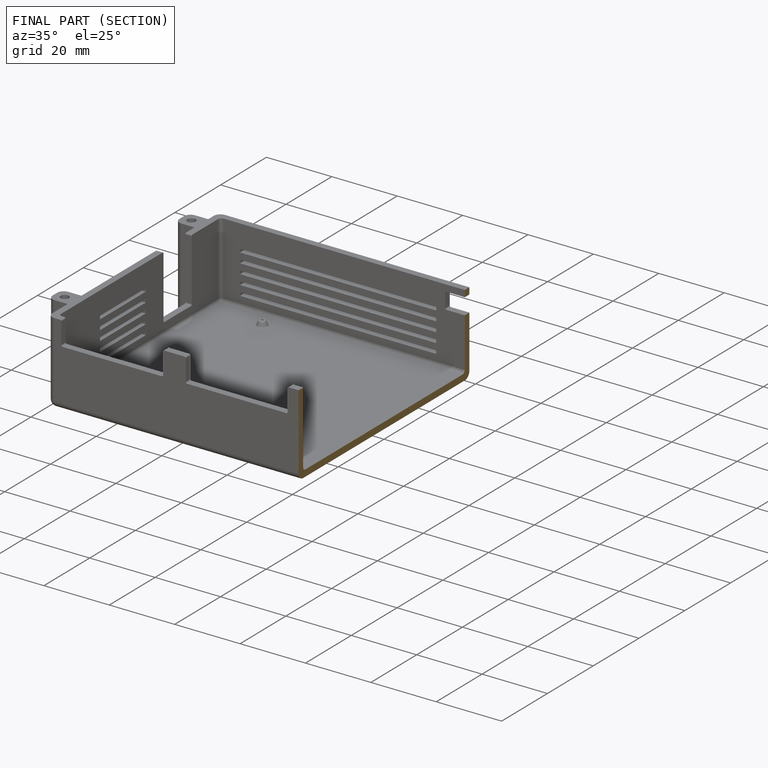
[diagram: finished part — half-section view (interior)]
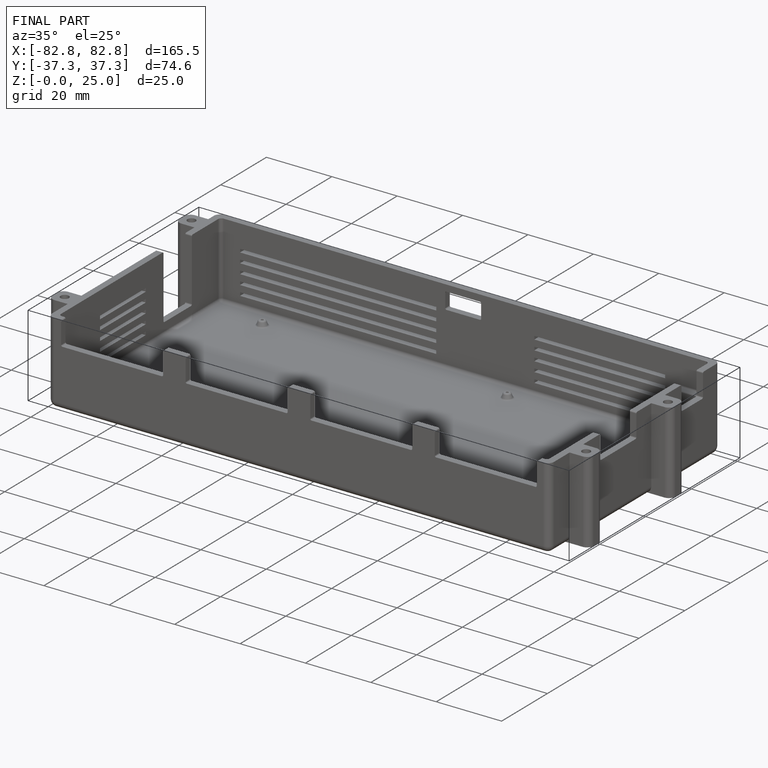
[diagram: finished part — iso view with bounding-box wireframe]
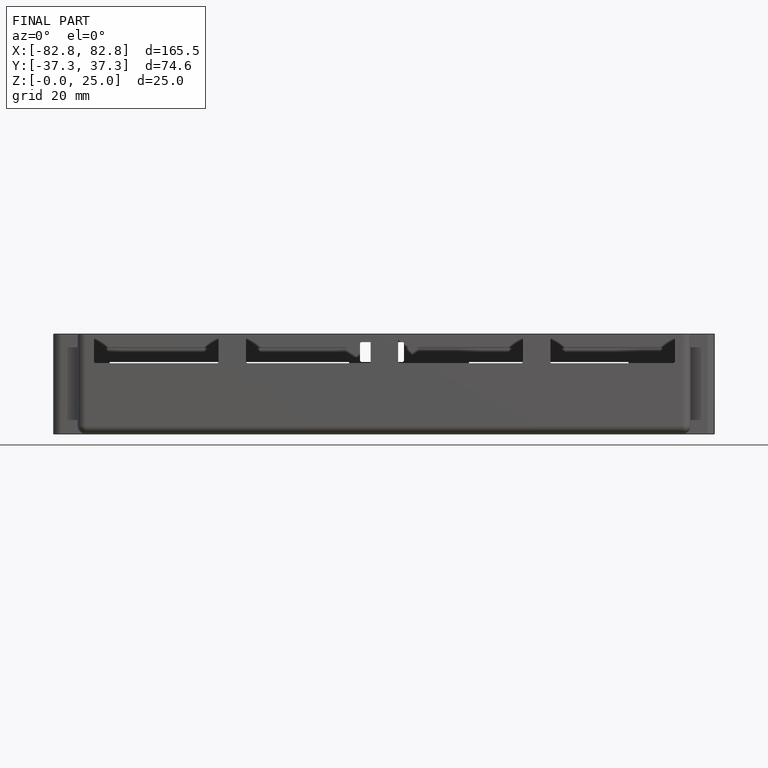
[diagram: finished part — front view with bounding-box wireframe]
